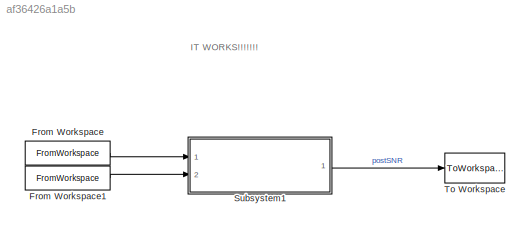
MODEL slx_af36426a1a5b
KIND model
CONFIG AbsTol = auto
CONFIG EnableMultiTasking = off
CONFIG FixedStep = auto
CONFIG InitFcn = postSNR_verScript;
CONFIG MaxStep = auto
CONFIG MinStep = auto
CONFIG RelTol = 1e-3
CONFIG SampleTimeConstraint = Unconstrained
CONFIG Solver = VariableStepAuto
CONFIG SolverName = VariableStepAuto
CONFIG StartTime = 0.0
CONFIG StopFcn = % Simulation Stuff\npostOut  = out.postSNR.signals.values(:, 1:FFT_size);\n\nfigure(2);\nstem(1:FFT_size, postOut(1,:), '*');\nhold on;\nstem(1:FFT_size, postSNRa(1,:), 'o');\nhold off;\nxlabel('Samples');\nlegend('Sim Data', 'Script Data');\ntitle('PostSNR Outputs: Simulation vs Script');\nprint('postSNR_Output', '-djpeg');\n\n\n
CONFIG StopTime = (nSamp - 1)*Ts
BLOCK [FromWorkspace] From Workspace
  Interpolate = off
  OutputAfterFinalValue = Setting to zero
  SampleTime = Ts
  VariableName = framePowerSim
  ZeroCross = on
BLOCK [FromWorkspace] From Workspace1
  Interpolate = off
  OutputAfterFinalValue = Setting to zero
  SampleTime = Ts
  VariableName = noiseVarianceSim
  ZeroCross = on
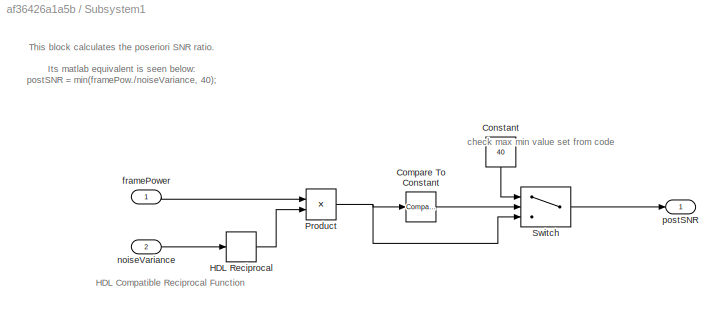
BLOCK [SubSystem] Subsystem1
  Ports = [2, 1]
  RequestExecContextInheritance = off
BLOCK [Reference] Subsystem1/Compare To Constant  REF=simulink/Logic and Bit
Operations/Compare
To Constant
  Ports = [1, 1]
  SourceBlock = simulink/Logic and Bit\nOperations/Compare\nTo Constant
  SourceProductBaseCode = SL
  SourceProductName = Simulink
  SourceType = Compare To Constant
BLOCK [Constant] Subsystem1/Constant
  SampleTime = -1
  Value = 40
BLOCK [Reciprocal] Subsystem1/HDL Reciprocal
BLOCK [Product] Subsystem1/Product
  InputSameDT = off
  Inputs = **
  OutDataTypeStr = Inherit: Inherit via internal rule
  Ports = [2, 1]
  RndMeth = Floor
  SaturateOnIntegerOverflow = off
BLOCK [Switch] Subsystem1/Switch
  InputSameDT = off
  SaturateOnIntegerOverflow = off
BLOCK [Inport] Subsystem1/framePower
  IconDisplay = Port number
BLOCK [Inport] Subsystem1/noiseVariance
  IconDisplay = Port number
  Port = 2
BLOCK [Outport] Subsystem1/postSNR
  IconDisplay = Port number
BLOCK [ToWorkspace] To Workspace
  MaxDataPoints = inf
  Ports = [1]
  SampleTime = -1
  SaveFormat = Structure With Time
  VariableName = postSNR
ANNOTATION (root): IT WORKS!!!!!!!
ANNOTATION Subsystem1: HDL Compatible Reciprocal Function
ANNOTATION Subsystem1: This block calculates the poseriori SNR ratio. Its matlab equivalent is seen below: postSNR = min(framePow./noiseVariance, 40);
ANNOTATION Subsystem1: check max min value set from code
LINE From Workspace1:1 -> Subsystem1:2
LINE From Workspace:1 -> Subsystem1:1
LINE Subsystem1/Compare To Constant:1 -> Subsystem1/Switch:2
LINE Subsystem1/Constant:1 -> Subsystem1/Switch:1
LINE Subsystem1/HDL Reciprocal:1 -> Subsystem1/Product:2
NET Subsystem1/Product:1 -> Subsystem1/Compare To Constant:1, Subsystem1/Switch:3
LINE Subsystem1/Switch:1 -> Subsystem1/postSNR:1
LINE Subsystem1/framePower:1 -> Subsystem1/Product:1
LINE Subsystem1/noiseVariance:1 -> Subsystem1/HDL Reciprocal:1
LINE Subsystem1:1 -> To Workspace:1
note: NET lines group one-source signal fan-out (src -> all destinations, sorted); 1:1 wires keep LINE
